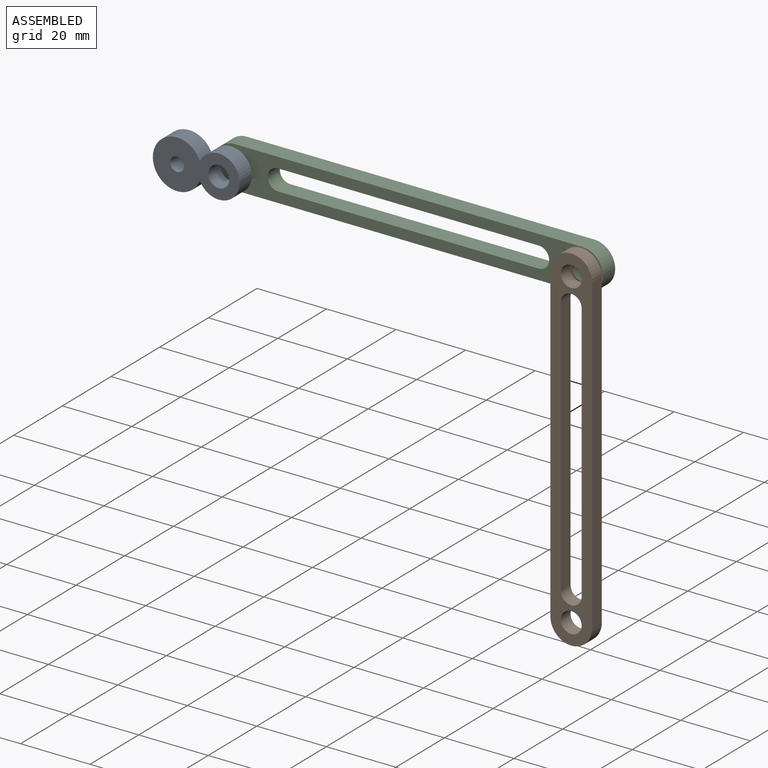
[diagram: assembled view]
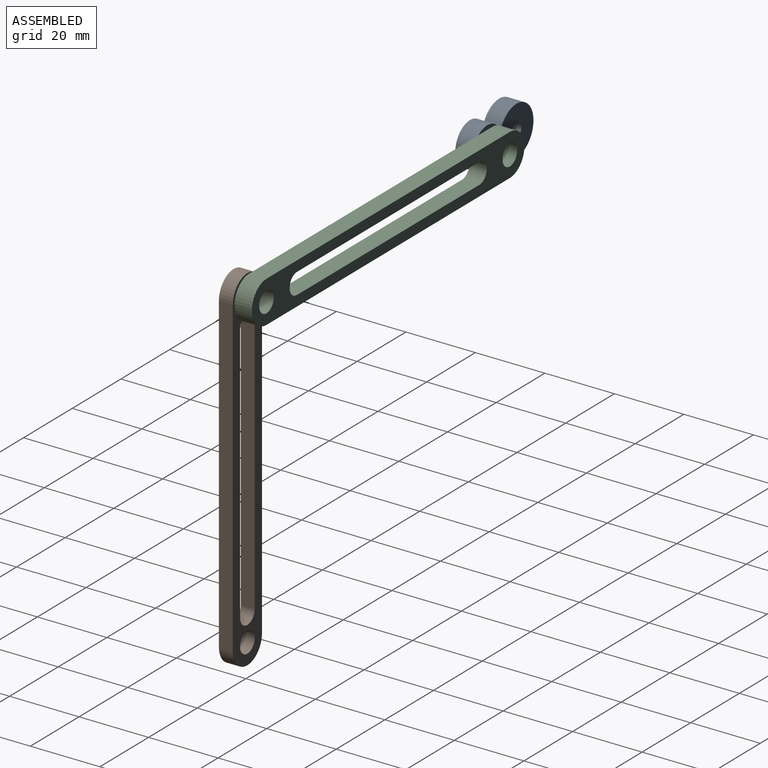
[diagram: assembled view, second angle]
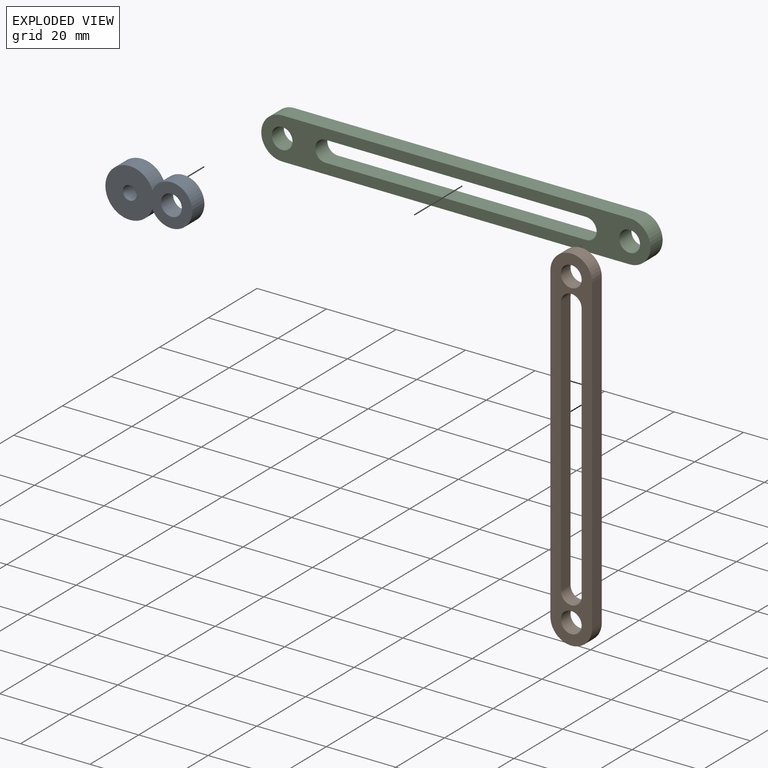
[diagram: exploded view]
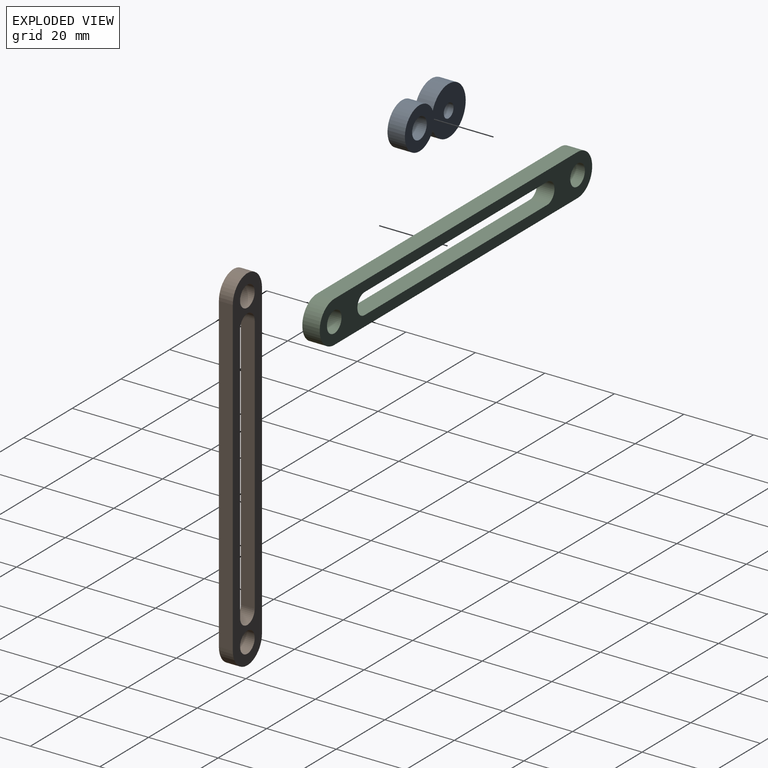
[diagram: exploded view, second angle]
ASSEMBLY  parts=3 mates=2
PART A: 6 faces, bbox 25x5x14 mm
  f0: cylinder r=2mm len=5mm, axis (0,1,0), area 62.8mm2, adj f2,f3
  f1: cylinder r=7mm len=14mm, axis (0,1,0), area 194.4mm2, adj f2,f3,f5
  f2: plane 25x14mm, normal (0,-1,0), area 222.8mm2, adj f0,f1,f4,f5
  f3: plane 25x14mm, normal (0,1,0), area 222.8mm2, adj f0,f1,f4,f5
  f4: cylinder r=3mm len=6mm, axis (0,-1,0), area 94.2mm2, adj f2,f3
  f5: cylinder r=6mm len=12mm, axis (0,-1,0), area 162.8mm2, adj f1,f2,f3
PART B: 12 faces, bbox 102x4x12 mm
  f0: plane 75x4mm, normal (0,0,1), area 300mm2, adj f1,f7,f10,f11
  f1: cylinder r=3mm len=6mm, axis (0,1,0), area 37.7mm2, adj f0,f2,f10,f11
  f2: plane 75x4mm, normal (0,0,-1), area 300mm2, adj f1,f7,f10,f11
  f3: plane 90x4mm, normal (0,0,1), area 360mm2, adj f4,f8,f10,f11
  f4: cylinder r=6mm len=12mm, axis (0,1,0), area 75.4mm2, adj f3,f5,f10,f11
  f5: plane 90x4mm, normal (0,0,-1), area 360mm2, adj f4,f8,f10,f11
  f6: cylinder r=3mm len=6mm, axis (0,1,0), area 75.4mm2, adj f10,f11
  f7: cylinder r=3mm len=6mm, axis (0,1,0), area 37.7mm2, adj f0,f2,f10,f11
  f8: cylinder r=6mm len=12mm, axis (0,1,0), area 75.4mm2, adj f3,f5,f10,f11
  f9: cylinder r=3mm len=6mm, axis (0,1,0), area 75.4mm2, adj f10,f11
  f10: plane 102x12mm, normal (0,-1,0), area 658.3mm2, adj f0,f1,f2,f3,f4,f5,f6,f7
  f11: plane 102x12mm, normal (0,1,0), area 658.3mm2, adj f0,f1,f2,f3,f4,f5,f6,f7
PART C: 12 faces, bbox 112x5x12 mm
  f0: plane 100x5mm, normal (0,0,-1), area 500mm2, adj f1,f7,f10,f11
  f1: cylinder r=6mm len=12mm, axis (0,1,0), area 94.2mm2, adj f0,f2,f10,f11
  f2: plane 100x5mm, normal (0,0,1), area 500mm2, adj f1,f7,f10,f11
  f3: cylinder r=3mm len=6mm, axis (0,1,0), area 47.1mm2, adj f4,f8,f10,f11
  f4: plane 75x5mm, normal (0,0,1), area 375mm2, adj f3,f5,f10,f11
  f5: cylinder r=3mm len=6mm, axis (0,1,0), area 47.1mm2, adj f4,f8,f10,f11
  f6: cylinder r=3mm len=6mm, axis (0,1,0), area 94.2mm2, adj f10,f11
  f7: cylinder r=6mm len=12mm, axis (0,1,0), area 94.2mm2, adj f0,f2,f10,f11
  f8: plane 75x5mm, normal (0,0,-1), area 375mm2, adj f3,f5,f10,f11
  f9: cylinder r=3mm len=6mm, axis (0,1,0), area 94.2mm2, adj f10,f11
  f10: plane 112x12mm, normal (0,-1,0), area 778.3mm2, adj f0,f1,f2,f3,f4,f5,f6,f7
  f11: plane 112x12mm, normal (0,1,0), area 778.3mm2, adj f0,f1,f2,f3,f4,f5,f6,f7
PLACE A t=(-14.05,-21.99,33.46)mm fixed
PLACE B rot(axis=(-0.71,0,-0.71),180deg) t=(97.95,-24.99,-86.54)mm
PLACE C rot(axis=(0,1,0),180deg) t=(-19.05,-15.49,33.46)mm
MATE cylindrical C.f1 <-> A.f4  axis (0,1,0) through (-2.05,-15.49,33.46)mm
MATE cylindrical B.f8 <-> C.f6  axis (0,-1,0) through (97.95,-24.99,33.46)mm
